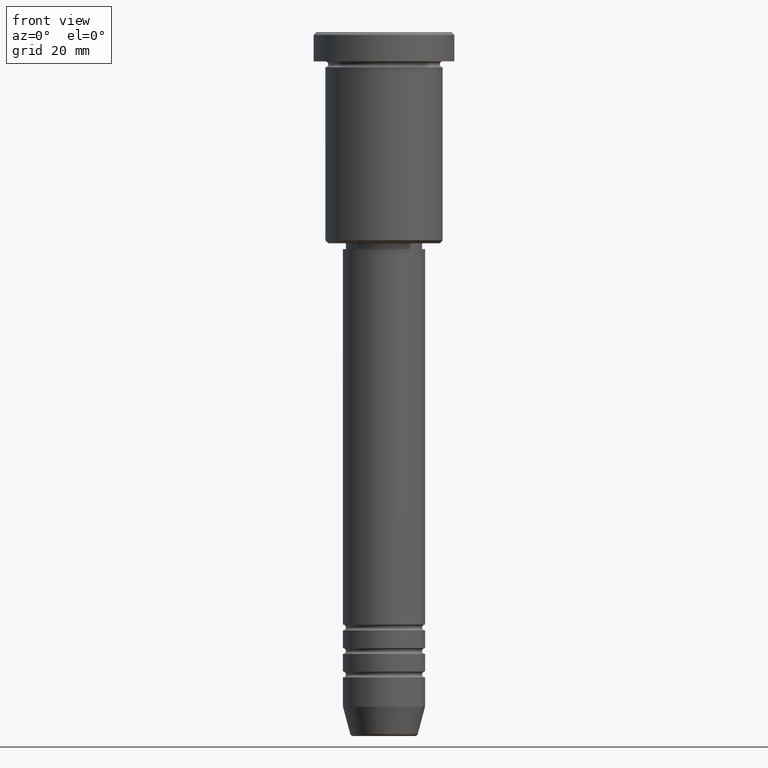
[diagram: clean part render]
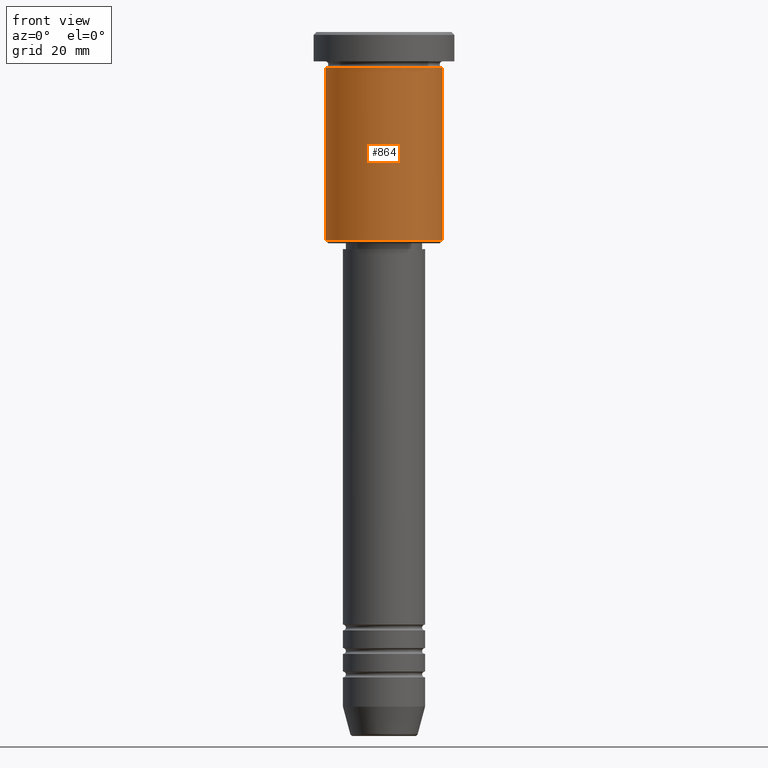
[diagram: same view with one face highlighted and labeled with its STEP entity id]
A machine part, front view. The second image highlights one B-rep face of the part: STEP entity #864.
In plain terms, the highlighted cylindrical surface (partial cylindrical patch) has radius 10 mm, axis along (-0, -0, 1).
Its self-contained STEP definition (entity closure, byte-faithful):
#22 = CARTESIAN_POINT ( 'NONE',  ( 9.999999999999998224, 0.000000000000000000, -35.49999999999997868 ) ) ;
#32 = VECTOR ( 'NONE', #433, 1000.000000000000000 ) ;
#57 = CARTESIAN_POINT ( 'NONE',  ( -10.00000000000000000, 1.224646799147353256E-15, -6.000000000000000000 ) ) ;
#76 = CARTESIAN_POINT ( 'NONE',  ( 9.999999999999998224, 0.000000000000000000, 0.000000000000000000 ) ) ;
#112 = EDGE_CURVE ( 'NONE', #175, #636, #940, .T. ) ;
#123 = VECTOR ( 'NONE', #541, 1000.000000000000000 ) ;
#175 = VERTEX_POINT ( 'NONE', #57 ) ;
#184 = CARTESIAN_POINT ( 'NONE',  ( -9.999999999999998224, 1.224646799147353059E-15, 0.000000000000000000 ) ) ;
#186 = CARTESIAN_POINT ( 'NONE',  ( 0.000000000000000000, 0.000000000000000000, -35.49999999999997868 ) ) ;
#189 = ORIENTED_EDGE ( 'NONE', *, *, #112, .F. ) ;
#238 = ORIENTED_EDGE ( 'NONE', *, *, #308, .F. ) ;
#267 = CARTESIAN_POINT ( 'NONE',  ( 0.000000000000000000, 0.000000000000000000, 0.000000000000000000 ) ) ;
#287 = DIRECTION ( 'NONE',  ( 1.000000000000000000, 0.000000000000000000, 0.000000000000000000 ) ) ;
#308 = EDGE_CURVE ( 'NONE', #903, #175, #470, .T. ) ;
#366 = DIRECTION ( 'NONE',  ( -1.000000000000000000, 0.000000000000000000, 0.000000000000000000 ) ) ;
#368 = LINE ( 'NONE', #76, #32 ) ;
#431 = AXIS2_PLACEMENT_3D ( 'NONE', #186, #902, #366 ) ;
#433 = DIRECTION ( 'NONE',  ( -0.000000000000000000, -0.000000000000000000, 1.000000000000000000 ) ) ;
#470 = LINE ( 'NONE', #184, #123 ) ;
#477 = ORIENTED_EDGE ( 'NONE', *, *, #1062, .T. ) ;
#526 = VERTEX_POINT ( 'NONE', #22 ) ;
#534 = CARTESIAN_POINT ( 'NONE',  ( -9.999999999999998224, 1.224646799147353059E-15, -35.49999999999997868 ) ) ;
#541 = DIRECTION ( 'NONE',  ( -0.000000000000000000, -0.000000000000000000, 1.000000000000000000 ) ) ;
#579 = EDGE_LOOP ( 'NONE', ( #238, #828, #477, #189 ) ) ;
#610 = DIRECTION ( 'NONE',  ( -0.000000000000000000, -0.000000000000000000, 1.000000000000000000 ) ) ;
#636 = VERTEX_POINT ( 'NONE', #706 ) ;
#637 = DIRECTION ( 'NONE',  ( 1.000000000000000000, 0.000000000000000000, 0.000000000000000000 ) ) ;
#706 = CARTESIAN_POINT ( 'NONE',  ( 10.00000000000000000, 0.000000000000000000, -6.000000000000000000 ) ) ;
#821 = FACE_OUTER_BOUND ( 'NONE', #579, .T. ) ;
#828 = ORIENTED_EDGE ( 'NONE', *, *, #904, .T. ) ;
#839 = CARTESIAN_POINT ( 'NONE',  ( 0.000000000000000000, 0.000000000000000000, -6.000000000000000000 ) ) ;
#853 = DIRECTION ( 'NONE',  ( -0.000000000000000000, -0.000000000000000000, 1.000000000000000000 ) ) ;
#864 = ADVANCED_FACE ( 'NONE', ( #821 ), #1087, .T. ) ;
#902 = DIRECTION ( 'NONE',  ( -0.000000000000000000, -0.000000000000000000, 1.000000000000000000 ) ) ;
#903 = VERTEX_POINT ( 'NONE', #534 ) ;
#904 = EDGE_CURVE ( 'NONE', #903, #526, #1042, .T. ) ;
#940 = CIRCLE ( 'NONE', #1115, 10.00000000000000000 ) ;
#1004 = AXIS2_PLACEMENT_3D ( 'NONE', #267, #610, #637 ) ;
#1042 = CIRCLE ( 'NONE', #431, 9.999999999999998224 ) ;
#1062 = EDGE_CURVE ( 'NONE', #526, #636, #368, .T. ) ;
#1087 = CYLINDRICAL_SURFACE ( 'NONE', #1004, 9.999999999999998224 ) ;
#1115 = AXIS2_PLACEMENT_3D ( 'NONE', #839, #853, #287 ) ;